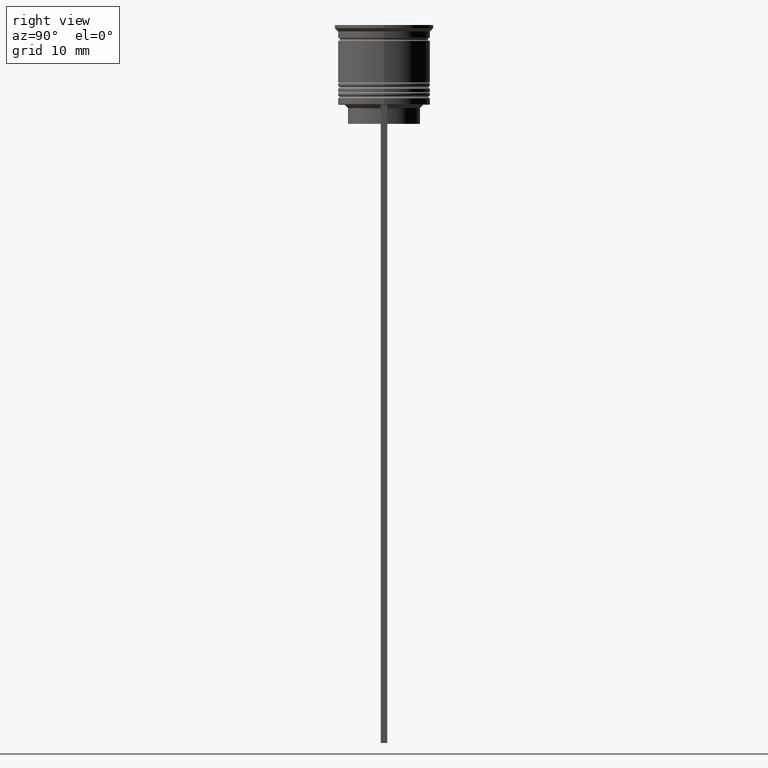
[diagram: clean part render]
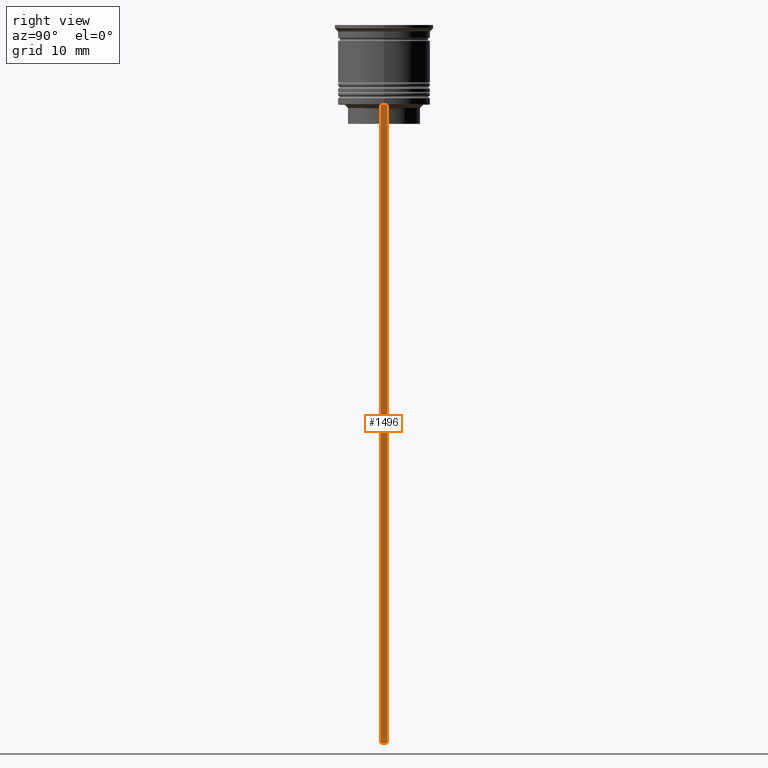
[diagram: same view with one face highlighted and labeled with its STEP entity id]
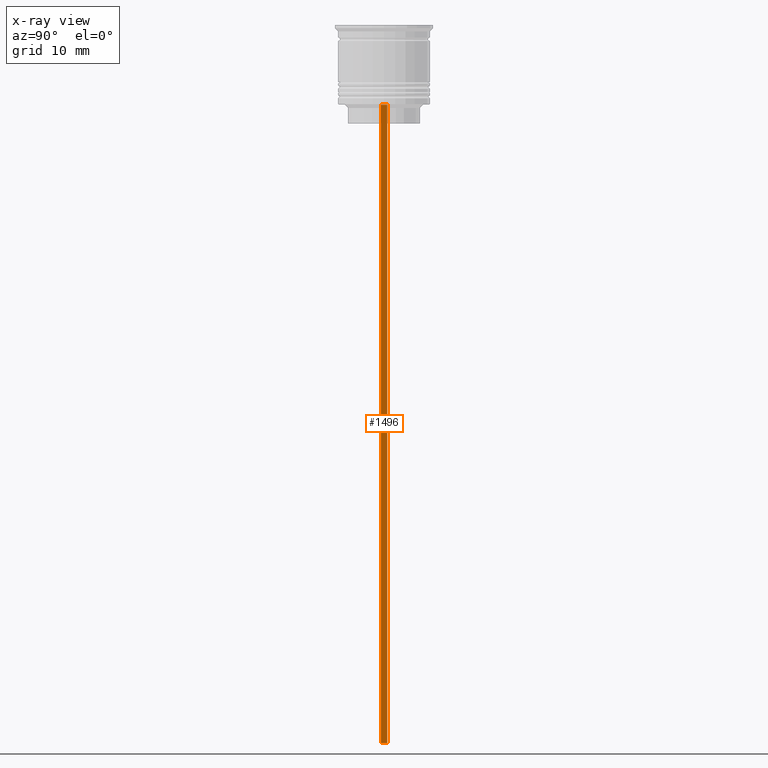
[diagram: x-ray of the same camera — body ghosted, the highlighted face saturated]
A machine part, right view. The second image highlights one B-rep face of the part: STEP entity #1496.
The next image is the same camera in x-ray: the body ghosted, the highlighted face saturated — about 0% of this face is hidden behind the body in this view.
In plain terms, the highlighted planar face has unit normal (-1, 0, 0).
Its self-contained STEP definition (entity closure, byte-faithful):
#53 = DIRECTION ( 'NONE',  ( 0.000000000000000000, 0.000000000000000000, 1.000000000000000000 ) ) ;
#159 = VERTEX_POINT ( 'NONE', #461 ) ;
#161 = VECTOR ( 'NONE', #291, 1000.000000000000000 ) ;
#291 = DIRECTION ( 'NONE',  ( 0.000000000000000000, 1.000000000000000000, 0.000000000000000000 ) ) ;
#320 = VECTOR ( 'NONE', #1314, 1000.000000000000000 ) ;
#428 = VECTOR ( 'NONE', #2226, 1000.000000000000000 ) ;
#461 = CARTESIAN_POINT ( 'NONE',  ( 7.000000000000012434, 0.4999999999999978351, -12.50000000000000000 ) ) ;
#483 = CARTESIAN_POINT ( 'NONE',  ( 7.000000000000012434, -0.5000000000000022204, -112.5000000000000000 ) ) ;
#487 = EDGE_LOOP ( 'NONE', ( #1966, #2072, #1267, #1730 ) ) ;
#549 = AXIS2_PLACEMENT_3D ( 'NONE', #950, #1533, #53 ) ;
#594 = CARTESIAN_POINT ( 'NONE',  ( 7.000000000000012434, -0.5000000000000022204, 1.535668847618198329 ) ) ;
#608 = CARTESIAN_POINT ( 'NONE',  ( 7.000000000000012434, 0.4999999999999978351, 1.535668847618198329 ) ) ;
#629 = EDGE_CURVE ( 'NONE', #2175, #941, #1035, .T. ) ;
#686 = LINE ( 'NONE', #1611, #1071 ) ;
#811 = PLANE ( 'NONE',  #549 ) ;
#859 = EDGE_CURVE ( 'NONE', #159, #2340, #686, .T. ) ;
#941 = VERTEX_POINT ( 'NONE', #1845 ) ;
#943 = DIRECTION ( 'NONE',  ( 0.000000000000000000, -1.000000000000000000, 0.000000000000000000 ) ) ;
#944 = EDGE_CURVE ( 'NONE', #2340, #2175, #2213, .T. ) ;
#950 = CARTESIAN_POINT ( 'NONE',  ( 7.000000000000012434, -0.5000000000000022204, 1.535668847618198329 ) ) ;
#1035 = LINE ( 'NONE', #483, #161 ) ;
#1071 = VECTOR ( 'NONE', #943, 1000.000000000000000 ) ;
#1113 = CARTESIAN_POINT ( 'NONE',  ( 7.000000000000012434, -0.5000000000000022204, -12.50000000000000000 ) ) ;
#1267 = ORIENTED_EDGE ( 'NONE', *, *, #944, .T. ) ;
#1314 = DIRECTION ( 'NONE',  ( 0.000000000000000000, 0.000000000000000000, -1.000000000000000000 ) ) ;
#1496 = ADVANCED_FACE ( 'NONE', ( #2071 ), #811, .F. ) ;
#1533 = DIRECTION ( 'NONE',  ( -1.000000000000000000, 0.000000000000000000, 0.000000000000000000 ) ) ;
#1611 = CARTESIAN_POINT ( 'NONE',  ( 7.000000000000012434, -0.5000000000000022204, -12.50000000000000000 ) ) ;
#1703 = LINE ( 'NONE', #608, #320 ) ;
#1730 = ORIENTED_EDGE ( 'NONE', *, *, #629, .T. ) ;
#1825 = EDGE_CURVE ( 'NONE', #159, #941, #1703, .T. ) ;
#1845 = CARTESIAN_POINT ( 'NONE',  ( 7.000000000000012434, 0.4999999999999978351, -112.5000000000000000 ) ) ;
#1966 = ORIENTED_EDGE ( 'NONE', *, *, #1825, .F. ) ;
#2071 = FACE_OUTER_BOUND ( 'NONE', #487, .T. ) ;
#2072 = ORIENTED_EDGE ( 'NONE', *, *, #859, .T. ) ;
#2159 = CARTESIAN_POINT ( 'NONE',  ( 7.000000000000012434, -0.5000000000000022204, -112.5000000000000000 ) ) ;
#2175 = VERTEX_POINT ( 'NONE', #2159 ) ;
#2213 = LINE ( 'NONE', #594, #428 ) ;
#2226 = DIRECTION ( 'NONE',  ( 0.000000000000000000, 0.000000000000000000, -1.000000000000000000 ) ) ;
#2340 = VERTEX_POINT ( 'NONE', #1113 ) ;